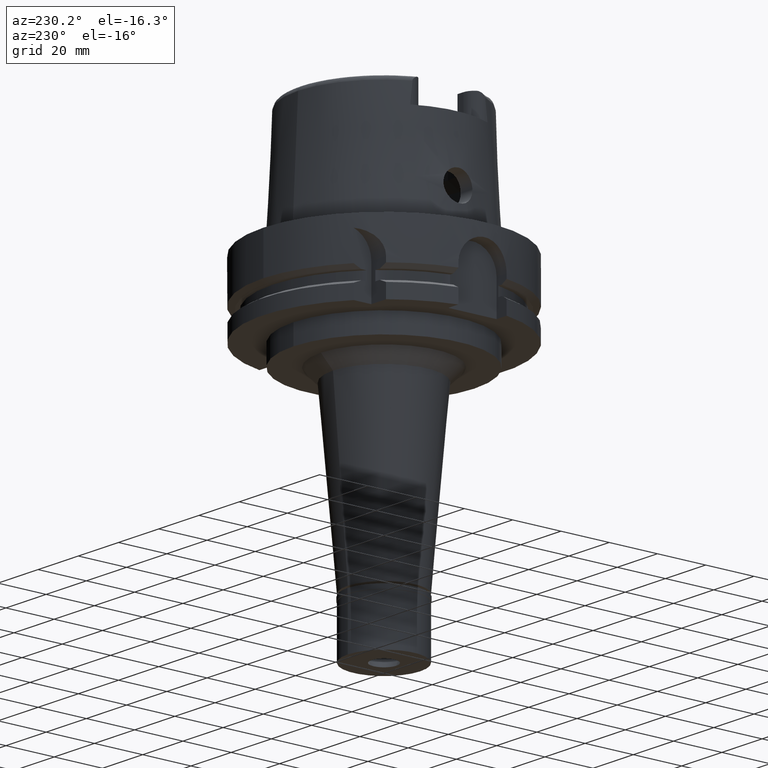
[diagram: clean part render]
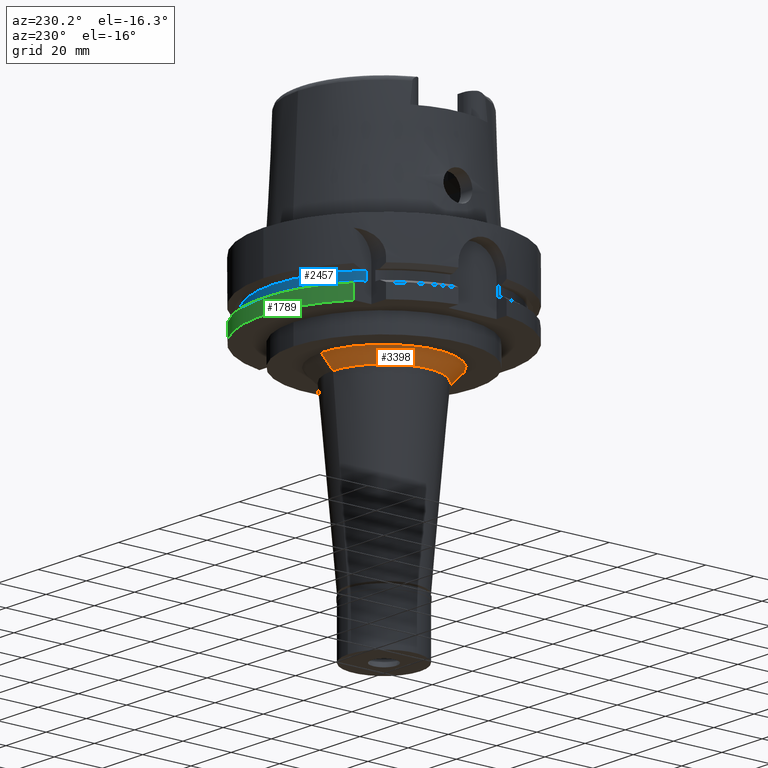
[diagram: same view with three faces highlighted in distinct colors, each labeled with its STEP entity id]
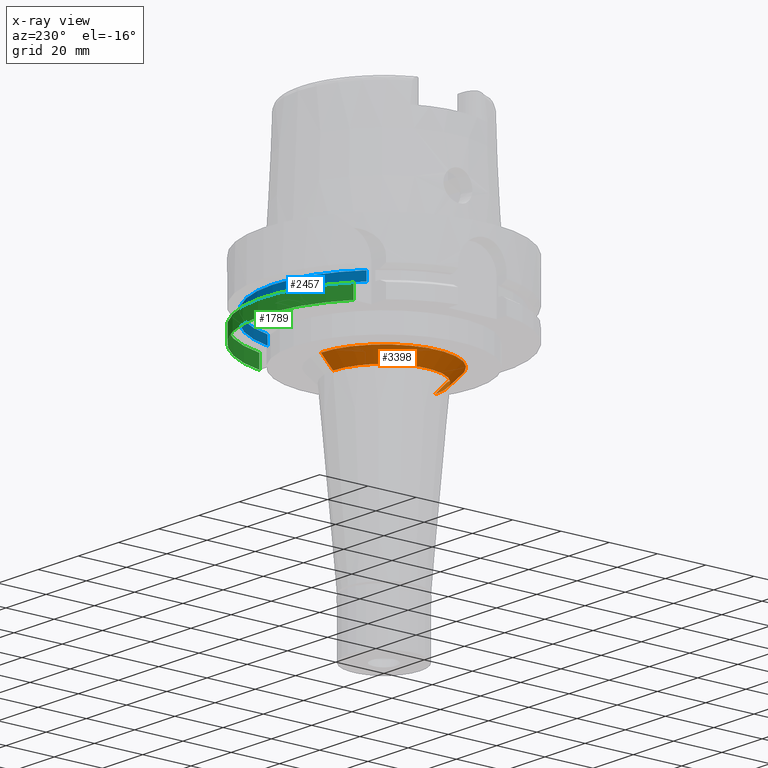
[diagram: x-ray of the same camera — body ghosted, the three highlighted faces saturated]
A machine part, auxiliary view with three faces highlighted in distinct colors.
The next image is the same camera in x-ray (body ghosted, the three faces saturated) — at least one of them is partly hidden behind the body in this view.
Their STEP definitions:

[orange] entity #3398 — the highlighted conical surface has half-angle 45 deg.
#108 = CARTESIAN_POINT ( 'NONE',  ( 0.0000000000000000000, 0.0000000000000000000, -39.50000000000000000 ) ) ;
#168 = DIRECTION ( 'NONE',  ( 0.0000000000000000000, -0.7071067811865474617, -0.7071067811865474617 ) ) ;
#263 = DIRECTION ( 'NONE',  ( 0.0000000000000000000, -1.000000000000000000, 0.0000000000000000000 ) ) ;
#1029 = EDGE_CURVE ( 'NONE', #3818, #3106, #1864, .T. ) ;
#1119 = AXIS2_PLACEMENT_3D ( 'NONE', #108, #5329, #4001 ) ;
#1355 = DIRECTION ( 'NONE',  ( 0.0000000000000000000, 0.7071067811865474617, -0.7071067811865474617 ) ) ;
#1417 = AXIS2_PLACEMENT_3D ( 'NONE', #1661, #5410, #2083 ) ;
#1441 = CIRCLE ( 'NONE', #3316, 21.14170417952000136 ) ;
#1592 = EDGE_LOOP ( 'NONE', ( #3064, #4111, #3641, #4201 ) ) ;
#1661 = CARTESIAN_POINT ( 'NONE',  ( 0.0000000000000000000, 0.0000000000000000000, -37.00000000000000000 ) ) ;
#1859 = CARTESIAN_POINT ( 'NONE',  ( 0.0000000000000000000, 26.14170417952000136, -37.00000000000000000 ) ) ;
#1864 = LINE ( 'NONE', #5273, #3203 ) ;
#2083 = DIRECTION ( 'NONE',  ( 0.0000000000000000000, -1.000000000000000000, 0.0000000000000000000 ) ) ;
#2089 = CARTESIAN_POINT ( 'NONE',  ( 0.0000000000000000000, -26.14170417952000136, -37.00000000000000000 ) ) ;
#2333 = FACE_OUTER_BOUND ( 'NONE', #1592, .T. ) ;
#2660 = CIRCLE ( 'NONE', #1417, 26.14170417952000136 ) ;
#2673 = EDGE_CURVE ( 'NONE', #5584, #3106, #1441, .T. ) ;
#2701 = CARTESIAN_POINT ( 'NONE',  ( 0.0000000000000000000, 0.0000000000000000000, -42.00000000000000000 ) ) ;
#3064 = ORIENTED_EDGE ( 'NONE', *, *, #2673, .F. ) ;
#3106 = VERTEX_POINT ( 'NONE', #5049 ) ;
#3203 = VECTOR ( 'NONE', #168, 1000.000000000000114 ) ;
#3261 = VERTEX_POINT ( 'NONE', #2089 ) ;
#3316 = AXIS2_PLACEMENT_3D ( 'NONE', #2701, #4417, #263 ) ;
#3398 = ADVANCED_FACE ( 'NONE', ( #2333 ), #3557, .T. ) ;
#3557 = CONICAL_SURFACE ( 'NONE', #1119, 23.64170417952000136, 0.7853981633972997312 ) ;
#3641 = ORIENTED_EDGE ( 'NONE', *, *, #5261, .T. ) ;
#3815 = CARTESIAN_POINT ( 'NONE',  ( 0.0000000000000000000, -26.14170417952000136, -37.00000000000000000 ) ) ;
#3818 = VERTEX_POINT ( 'NONE', #1859 ) ;
#4001 = DIRECTION ( 'NONE',  ( 0.0000000000000000000, 1.000000000000000000, 0.0000000000000000000 ) ) ;
#4111 = ORIENTED_EDGE ( 'NONE', *, *, #4667, .F. ) ;
#4201 = ORIENTED_EDGE ( 'NONE', *, *, #1029, .T. ) ;
#4417 = DIRECTION ( 'NONE',  ( 0.0000000000000000000, 0.0000000000000000000, -1.000000000000000000 ) ) ;
#4667 = EDGE_CURVE ( 'NONE', #3261, #5584, #4687, .T. ) ;
#4687 = LINE ( 'NONE', #3815, #5009 ) ;
#5005 = CARTESIAN_POINT ( 'NONE',  ( 0.0000000000000000000, -21.14170417952000136, -42.00000000000000000 ) ) ;
#5009 = VECTOR ( 'NONE', #1355, 1000.000000000000114 ) ;
#5049 = CARTESIAN_POINT ( 'NONE',  ( 0.0000000000000000000, 21.14170417952000136, -42.00000000000000000 ) ) ;
#5261 = EDGE_CURVE ( 'NONE', #3261, #3818, #2660, .T. ) ;
#5273 = CARTESIAN_POINT ( 'NONE',  ( 0.0000000000000000000, 26.14170417952000136, -37.00000000000000000 ) ) ;
#5329 = DIRECTION ( 'NONE',  ( 0.0000000000000000000, 0.0000000000000000000, 1.000000000000000000 ) ) ;
#5410 = DIRECTION ( 'NONE',  ( 0.0000000000000000000, 0.0000000000000000000, -1.000000000000000000 ) ) ;
#5584 = VERTEX_POINT ( 'NONE', #5005 ) ;

[blue] entity #2457 — the highlighted cylindrical surface (partial cylindrical patch) has radius 46 mm, axis along (0, 0, 1).
#5 = CARTESIAN_POINT ( 'NONE',  ( 44.66542286825000474, 11.00000000000000000, -21.87500000000000000 ) ) ;
#25 = ORIENTED_EDGE ( 'NONE', *, *, #1200, .T. ) ;
#98 = DIRECTION ( 'NONE',  ( 0.9709874536577099979, 0.2391304347826024856, 0.0000000000000000000 ) ) ;
#703 = CARTESIAN_POINT ( 'NONE',  ( 0.0000000000000000000, 0.0000000000000000000, -18.12500000000000000 ) ) ;
#861 = ORIENTED_EDGE ( 'NONE', *, *, #3632, .F. ) ;
#999 = CARTESIAN_POINT ( 'NONE',  ( 44.66542286825000474, 11.00000000000000000, -21.87500000000000000 ) ) ;
#1127 = ORIENTED_EDGE ( 'NONE', *, *, #1917, .T. ) ;
#1200 = EDGE_CURVE ( 'NONE', #1570, #1525, #1332, .T. ) ;
#1332 = CIRCLE ( 'NONE', #5008, 46.00000000000000000 ) ;
#1521 = CARTESIAN_POINT ( 'NONE',  ( -31.50000000000000000, 33.52238058372000040, -21.87500000000000000 ) ) ;
#1525 = VERTEX_POINT ( 'NONE', #2496 ) ;
#1570 = VERTEX_POINT ( 'NONE', #1599 ) ;
#1599 = CARTESIAN_POINT ( 'NONE',  ( -31.50000000000000000, 33.52238058372000040, -18.12500000000000000 ) ) ;
#1722 = DIRECTION ( 'NONE',  ( 0.0000000000000000000, 0.0000000000000000000, -1.000000000000000000 ) ) ;
#1765 = VECTOR ( 'NONE', #1722, 1000.000000000000000 ) ;
#1800 = AXIS2_PLACEMENT_3D ( 'NONE', #3230, #2335, #3588 ) ;
#1802 = CARTESIAN_POINT ( 'NONE',  ( 0.0000000000000000000, 0.0000000000000000000, -21.87500000000000000 ) ) ;
#1917 = EDGE_CURVE ( 'NONE', #4013, #5085, #3859, .T. ) ;
#2194 = LINE ( 'NONE', #5070, #1765 ) ;
#2335 = DIRECTION ( 'NONE',  ( 0.0000000000000000000, 0.0000000000000000000, 1.000000000000000000 ) ) ;
#2457 = ADVANCED_FACE ( 'NONE', ( #3156 ), #4003, .T. ) ;
#2496 = CARTESIAN_POINT ( 'NONE',  ( 44.66542286825000474, 11.00000000000000000, -18.12500000000000000 ) ) ;
#2661 = DIRECTION ( 'NONE',  ( 0.0000000000000000000, 0.0000000000000000000, 1.000000000000000000 ) ) ;
#2917 = DIRECTION ( 'NONE',  ( 0.0000000000000000000, 1.000000000000000000, 0.0000000000000000000 ) ) ;
#3156 = FACE_OUTER_BOUND ( 'NONE', #5235, .T. ) ;
#3230 = CARTESIAN_POINT ( 'NONE',  ( 0.0000000000000000000, 0.0000000000000000000, -137.2150000000000034 ) ) ;
#3417 = EDGE_CURVE ( 'NONE', #4013, #1525, #3973, .T. ) ;
#3588 = DIRECTION ( 'NONE',  ( 0.0000000000000000000, 1.000000000000000000, 0.0000000000000000000 ) ) ;
#3632 = EDGE_CURVE ( 'NONE', #1570, #5085, #2194, .T. ) ;
#3695 = ORIENTED_EDGE ( 'NONE', *, *, #3417, .F. ) ;
#3725 = VECTOR ( 'NONE', #4896, 1000.000000000000000 ) ;
#3859 = CIRCLE ( 'NONE', #4844, 46.00000000000000000 ) ;
#3973 = LINE ( 'NONE', #999, #3725 ) ;
#4003 = CYLINDRICAL_SURFACE ( 'NONE', #1800, 46.00000000000000000 ) ;
#4013 = VERTEX_POINT ( 'NONE', #5 ) ;
#4160 = DIRECTION ( 'NONE',  ( 0.0000000000000000000, 0.0000000000000000000, -1.000000000000000000 ) ) ;
#4844 = AXIS2_PLACEMENT_3D ( 'NONE', #1802, #2661, #98 ) ;
#4896 = DIRECTION ( 'NONE',  ( 0.0000000000000000000, 0.0000000000000000000, 1.000000000000000000 ) ) ;
#5008 = AXIS2_PLACEMENT_3D ( 'NONE', #703, #4160, #2917 ) ;
#5070 = CARTESIAN_POINT ( 'NONE',  ( -31.50000000000000000, 33.52238058372000040, -18.12500000000000000 ) ) ;
#5085 = VERTEX_POINT ( 'NONE', #1521 ) ;
#5235 = EDGE_LOOP ( 'NONE', ( #861, #25, #3695, #1127 ) ) ;

[green] entity #1789 — the highlighted cylindrical surface (partial cylindrical patch) has radius 50 mm, axis along (0, 0, 1).
#604 = EDGE_LOOP ( 'NONE', ( #1266, #2603, #3121, #3347 ) ) ;
#620 = AXIS2_PLACEMENT_3D ( 'NONE', #5090, #1240, #813 ) ;
#686 = VECTOR ( 'NONE', #690, 1000.000000000000000 ) ;
#690 = DIRECTION ( 'NONE',  ( -8.399427413532000465E-14, -2.068976605539000027E-14, 1.000000000000000000 ) ) ;
#786 = AXIS2_PLACEMENT_3D ( 'NONE', #3373, #2501, #4223 ) ;
#813 = DIRECTION ( 'NONE',  ( 0.0000000000000000000, 1.000000000000000000, 0.0000000000000000000 ) ) ;
#891 = VERTEX_POINT ( 'NONE', #4947 ) ;
#1233 = EDGE_CURVE ( 'NONE', #2845, #891, #1595, .T. ) ;
#1240 = DIRECTION ( 'NONE',  ( 0.0000000000000000000, 0.0000000000000000000, 1.000000000000000000 ) ) ;
#1266 = ORIENTED_EDGE ( 'NONE', *, *, #1233, .T. ) ;
#1299 = DIRECTION ( 'NONE',  ( 0.0000000000000000000, 1.000000000000000000, 0.0000000000000000000 ) ) ;
#1595 = CIRCLE ( 'NONE', #786, 50.00000000000000711 ) ;
#1789 = ADVANCED_FACE ( 'NONE', ( #5122 ), #5580, .T. ) ;
#2128 = LINE ( 'NONE', #3058, #4463 ) ;
#2400 = VERTEX_POINT ( 'NONE', #4061 ) ;
#2501 = DIRECTION ( 'NONE',  ( 0.0000000000000000000, 0.0000000000000000000, -1.000000000000000000 ) ) ;
#2568 = CARTESIAN_POINT ( 'NONE',  ( -31.50000355985999789, 38.82975374283000036, -23.24760820811999906 ) ) ;
#2603 = ORIENTED_EDGE ( 'NONE', *, *, #4970, .F. ) ;
#2845 = VERTEX_POINT ( 'NONE', #2568 ) ;
#2954 = CARTESIAN_POINT ( 'NONE',  ( 0.0000000000000000000, 0.0000000000000000000, -29.00000000000000000 ) ) ;
#3058 = CARTESIAN_POINT ( 'NONE',  ( -31.50000355985999789, 38.82975374283000036, -23.24760820811999906 ) ) ;
#3121 = ORIENTED_EDGE ( 'NONE', *, *, #3642, .T. ) ;
#3271 = CARTESIAN_POINT ( 'NONE',  ( 48.77499359303000404, 11.00000000000000000, -29.00000000000000000 ) ) ;
#3347 = ORIENTED_EDGE ( 'NONE', *, *, #4731, .F. ) ;
#3373 = CARTESIAN_POINT ( 'NONE',  ( 0.0000000000000000000, 0.0000000000000000000, -23.24759526419000011 ) ) ;
#3642 = EDGE_CURVE ( 'NONE', #4983, #2400, #4901, .T. ) ;
#3759 = CARTESIAN_POINT ( 'NONE',  ( 48.77499359303000404, 11.00000000000000000, -29.00000000000000000 ) ) ;
#3856 = DIRECTION ( 'NONE',  ( 6.188494047474892859E-07, 5.020316378013912240E-07, -0.9999999999996824762 ) ) ;
#4061 = CARTESIAN_POINT ( 'NONE',  ( -31.50000000000000000, 38.82975663071000128, -29.00000000000000000 ) ) ;
#4223 = DIRECTION ( 'NONE',  ( -0.6299999999999789102, 0.7765951326141738997, 0.0000000000000000000 ) ) ;
#4373 = AXIS2_PLACEMENT_3D ( 'NONE', #2954, #5098, #1299 ) ;
#4463 = VECTOR ( 'NONE', #3856, 1000.000000000000000 ) ;
#4533 = LINE ( 'NONE', #3271, #686 ) ;
#4731 = EDGE_CURVE ( 'NONE', #2845, #2400, #2128, .T. ) ;
#4901 = CIRCLE ( 'NONE', #4373, 50.00000000000000000 ) ;
#4947 = CARTESIAN_POINT ( 'NONE',  ( 48.77499359303000404, 11.00000000000000000, -23.24759526419000011 ) ) ;
#4970 = EDGE_CURVE ( 'NONE', #4983, #891, #4533, .T. ) ;
#4983 = VERTEX_POINT ( 'NONE', #3759 ) ;
#5090 = CARTESIAN_POINT ( 'NONE',  ( 0.0000000000000000000, 0.0000000000000000000, -137.2150000000000034 ) ) ;
#5098 = DIRECTION ( 'NONE',  ( 0.0000000000000000000, 0.0000000000000000000, 1.000000000000000000 ) ) ;
#5122 = FACE_OUTER_BOUND ( 'NONE', #604, .T. ) ;
#5580 = CYLINDRICAL_SURFACE ( 'NONE', #620, 50.00000000000000000 ) ;